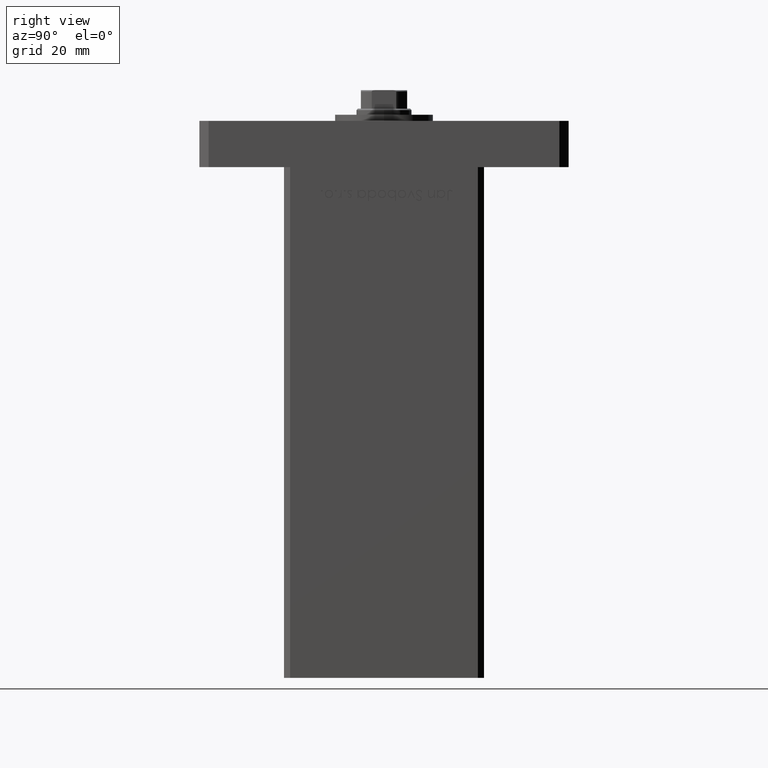
[diagram: clean part render]
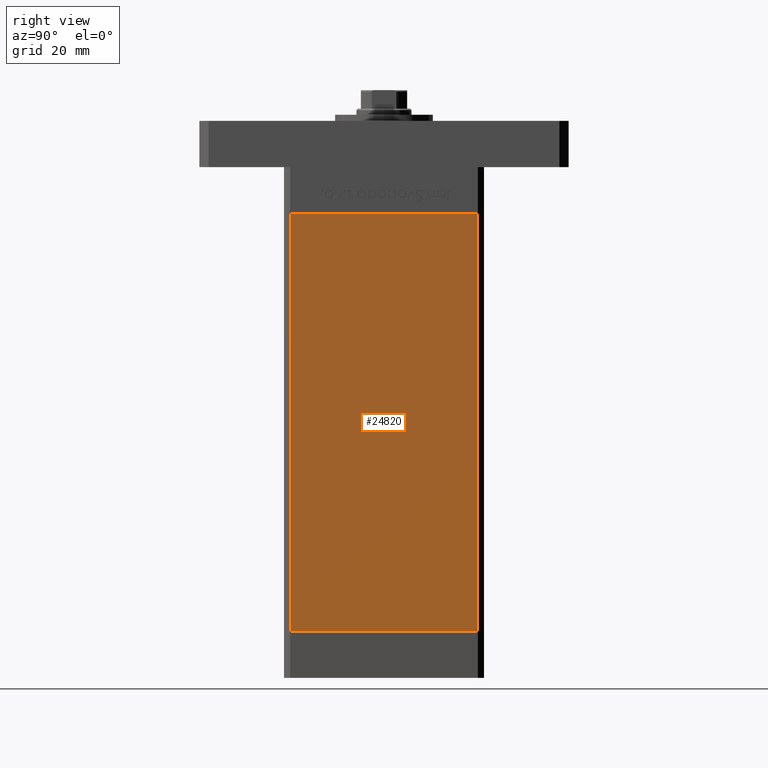
[diagram: same view with one face highlighted and labeled with its STEP entity id]
A machine part, right view. The second image highlights one B-rep face of the part: STEP entity #24820.
In plain terms, the highlighted planar face has unit normal (1, -0, 0).
Its self-contained STEP definition (entity closure, byte-faithful):
#580 = CARTESIAN_POINT ( 'NONE',  ( 37.50000000000000711, 30.50000000000000000, 0.000000000000000000 ) ) ;
#2806 = VERTEX_POINT ( 'NONE', #35088 ) ;
#3770 = EDGE_LOOP ( 'NONE', ( #30123, #4864, #40651, #47605 ) ) ;
#4864 = ORIENTED_EDGE ( 'NONE', *, *, #23960, .F. ) ;
#6665 = EDGE_CURVE ( 'NONE', #2806, #42908, #21184, .T. ) ;
#7263 = VECTOR ( 'NONE', #7306, 1000.000000000000000 ) ;
#7306 = DIRECTION ( 'NONE',  ( -0.000000000000000000, -0.000000000000000000, -1.000000000000000000 ) ) ;
#7934 = CARTESIAN_POINT ( 'NONE',  ( 37.50000000000000711, 30.50000000000000000, 136.0000000000000000 ) ) ;
#8922 = VERTEX_POINT ( 'NONE', #28875 ) ;
#11104 = PLANE ( 'NONE',  #42719 ) ;
#11371 = LINE ( 'NONE', #27892, #7263 ) ;
#11749 = VECTOR ( 'NONE', #45327, 1000.000000000000000 ) ;
#11915 = DIRECTION ( 'NONE',  ( 1.000000000000000000, -2.275047181608927644E-16, 0.000000000000000000 ) ) ;
#17298 = EDGE_CURVE ( 'NONE', #8922, #42908, #33092, .T. ) ;
#21184 = LINE ( 'NONE', #580, #37162 ) ;
#23960 = EDGE_CURVE ( 'NONE', #26863, #2806, #11371, .T. ) ;
#24820 = ADVANCED_FACE ( 'NONE', ( #53106 ), #11104, .T. ) ;
#26863 = VERTEX_POINT ( 'NONE', #49411 ) ;
#27892 = CARTESIAN_POINT ( 'NONE',  ( 37.50000000000000711, 30.50000000000000000, 136.0000000000000000 ) ) ;
#28430 = DIRECTION ( 'NONE',  ( 2.275047181608927644E-16, 1.000000000000000000, 0.000000000000000000 ) ) ;
#28875 = CARTESIAN_POINT ( 'NONE',  ( 37.49999999999999289, -30.50000000000000000, 136.0000000000000000 ) ) ;
#29151 = EDGE_CURVE ( 'NONE', #26863, #8922, #40727, .T. ) ;
#30123 = ORIENTED_EDGE ( 'NONE', *, *, #6665, .F. ) ;
#32854 = DIRECTION ( 'NONE',  ( -2.275047181608927644E-16, -1.000000000000000000, 0.000000000000000000 ) ) ;
#33092 = LINE ( 'NONE', #34613, #33991 ) ;
#33991 = VECTOR ( 'NONE', #47072, 1000.000000000000000 ) ;
#34613 = CARTESIAN_POINT ( 'NONE',  ( 37.49999999999999289, -30.50000000000000000, 136.0000000000000000 ) ) ;
#35088 = CARTESIAN_POINT ( 'NONE',  ( 37.50000000000000711, 30.50000000000000000, 0.000000000000000000 ) ) ;
#37162 = VECTOR ( 'NONE', #32854, 1000.000000000000000 ) ;
#40651 = ORIENTED_EDGE ( 'NONE', *, *, #29151, .T. ) ;
#40727 = LINE ( 'NONE', #7934, #11749 ) ;
#42719 = AXIS2_PLACEMENT_3D ( 'NONE', #44965, #11915, #28430 ) ;
#42908 = VERTEX_POINT ( 'NONE', #47425 ) ;
#44965 = CARTESIAN_POINT ( 'NONE',  ( 37.50000000000000711, 30.50000000000000000, 136.0000000000000000 ) ) ;
#45327 = DIRECTION ( 'NONE',  ( -2.275047181608927644E-16, -1.000000000000000000, 0.000000000000000000 ) ) ;
#47072 = DIRECTION ( 'NONE',  ( -0.000000000000000000, -0.000000000000000000, -1.000000000000000000 ) ) ;
#47425 = CARTESIAN_POINT ( 'NONE',  ( 37.49999999999999289, -30.50000000000000000, 0.000000000000000000 ) ) ;
#47605 = ORIENTED_EDGE ( 'NONE', *, *, #17298, .T. ) ;
#49411 = CARTESIAN_POINT ( 'NONE',  ( 37.50000000000000711, 30.50000000000000000, 136.0000000000000000 ) ) ;
#53106 = FACE_OUTER_BOUND ( 'NONE', #3770, .T. ) ;